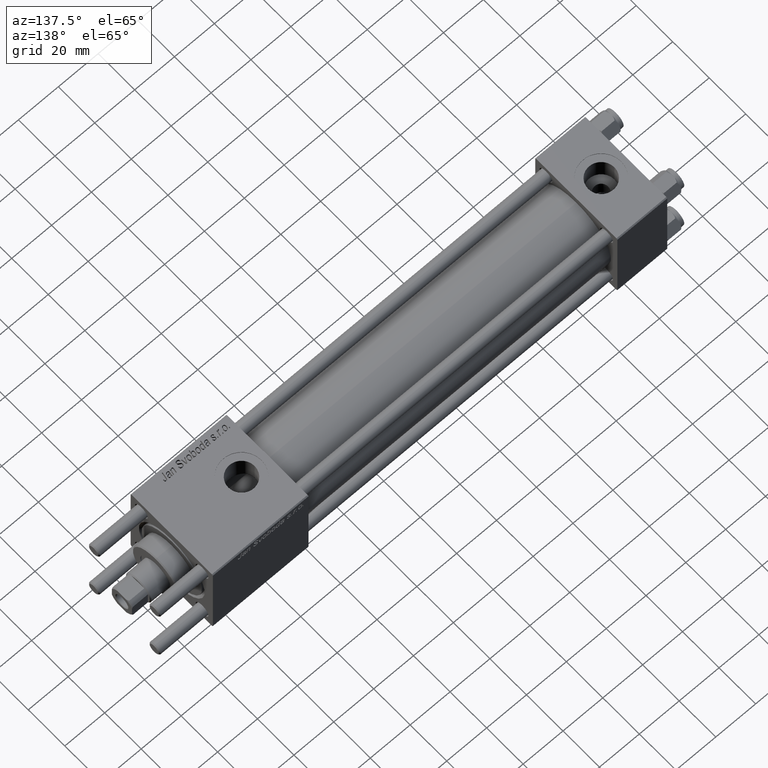
[diagram: clean part render]
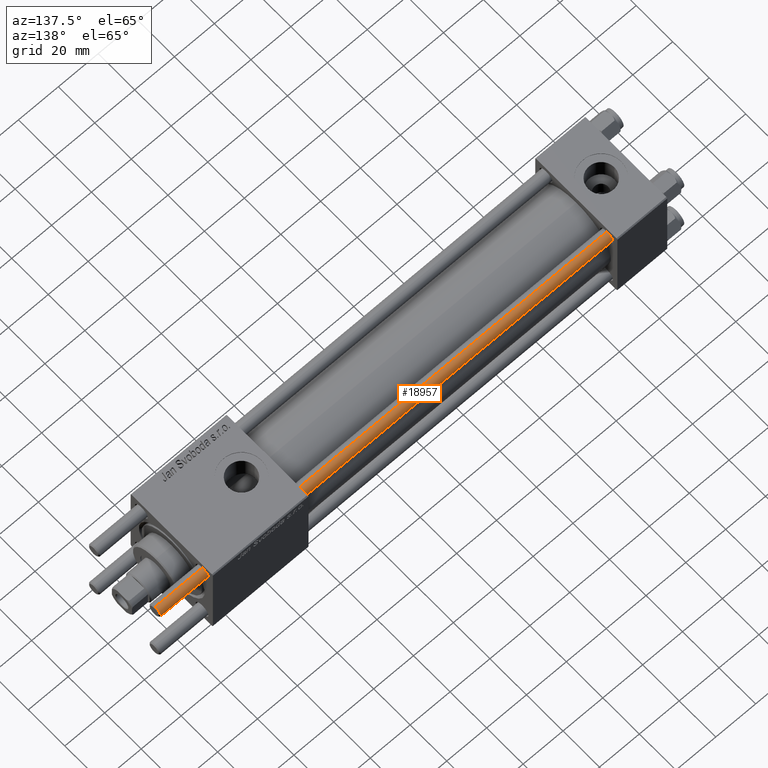
[diagram: same view with one face highlighted and labeled with its STEP entity id]
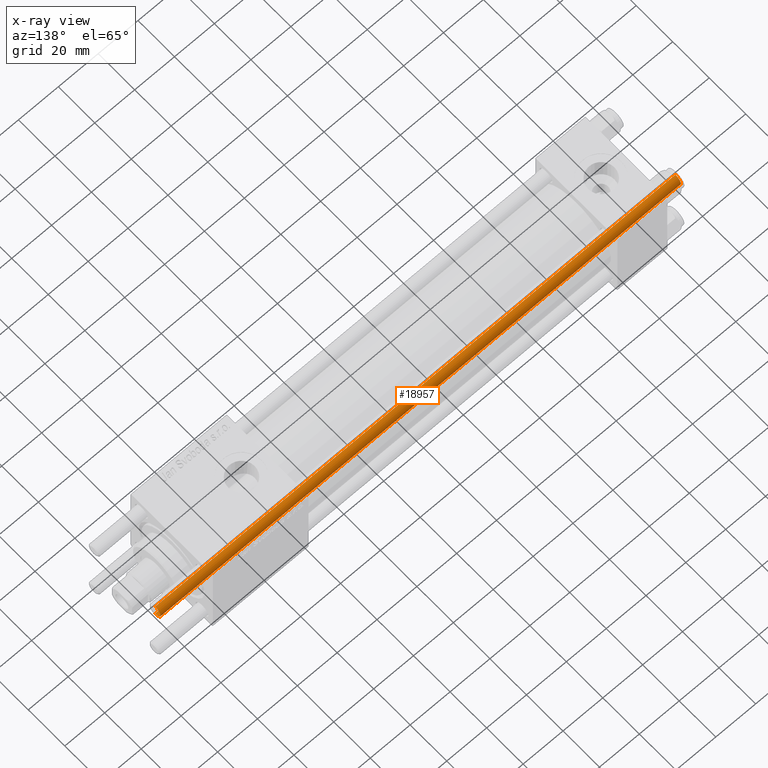
[diagram: x-ray of the same camera — body ghosted, the highlighted face saturated]
A machine part, auxiliary view. The second image highlights one B-rep face of the part: STEP entity #18957.
The next image is the same camera in x-ray: the body ghosted, the highlighted face saturated — about 0% of this face is hidden behind the body in this view.
In plain terms, the highlighted cylindrical surface (edge-blend (fillet) strip) has radius 3 mm, axis along (1, -0, -0).
Its self-contained STEP definition (entity closure, byte-faithful):
#84 = CARTESIAN_POINT ( 'NONE',  ( 0.000000000000000000, 0.000000000000000000, 261.5000000000000568 ) ) ;
#646 = DIRECTION ( 'NONE',  ( 1.000000000000000000, 0.000000000000000000, 0.000000000000000000 ) ) ;
#4919 = ORIENTED_EDGE ( 'NONE', *, *, #25396, .T. ) ;
#5668 = CIRCLE ( 'NONE', #54314, 3.000000000000000444 ) ;
#9003 = DIRECTION ( 'NONE',  ( 0.000000000000000000, 0.000000000000000000, -1.000000000000000000 ) ) ;
#9289 = CARTESIAN_POINT ( 'NONE',  ( -3.000000000000000444, 0.000000000000000000, 0.5000000000000004441 ) ) ;
#10610 = VERTEX_POINT ( 'NONE', #56538 ) ;
#11148 = AXIS2_PLACEMENT_3D ( 'NONE', #13972, #31505, #49036 ) ;
#13972 = CARTESIAN_POINT ( 'NONE',  ( 0.000000000000000000, 0.000000000000000000, 262.0000000000000000 ) ) ;
#14215 = ORIENTED_EDGE ( 'NONE', *, *, #20796, .F. ) ;
#14765 = CARTESIAN_POINT ( 'NONE',  ( 3.000000000000000444, 3.673940397442060361E-16, 262.0000000000000000 ) ) ;
#14856 = CIRCLE ( 'NONE', #56164, 3.000000000000000444 ) ;
#18957 = ADVANCED_FACE ( 'NONE', ( #35813 ), #53343, .T. ) ;
#20796 = EDGE_CURVE ( 'NONE', #10610, #34218, #32991, .T. ) ;
#21182 = EDGE_CURVE ( 'NONE', #23548, #34218, #14856, .T. ) ;
#21477 = CARTESIAN_POINT ( 'NONE',  ( 3.000000000000000444, 3.673940397442060361E-16, 0.5000000000000004441 ) ) ;
#23548 = VERTEX_POINT ( 'NONE', #21477 ) ;
#24237 = DIRECTION ( 'NONE',  ( 1.000000000000000000, 0.000000000000000000, 0.000000000000000000 ) ) ;
#25396 = EDGE_CURVE ( 'NONE', #10610, #54161, #5668, .T. ) ;
#26522 = ORIENTED_EDGE ( 'NONE', *, *, #31172, .T. ) ;
#31172 = EDGE_CURVE ( 'NONE', #54161, #23548, #50107, .T. ) ;
#31505 = DIRECTION ( 'NONE',  ( -0.000000000000000000, -0.000000000000000000, -1.000000000000000000 ) ) ;
#32245 = ORIENTED_EDGE ( 'NONE', *, *, #21182, .T. ) ;
#32991 = LINE ( 'NONE', #33273, #39644 ) ;
#33273 = CARTESIAN_POINT ( 'NONE',  ( -3.000000000000000444, 0.000000000000000000, 262.0000000000000000 ) ) ;
#34218 = VERTEX_POINT ( 'NONE', #9289 ) ;
#35813 = FACE_OUTER_BOUND ( 'NONE', #55724, .T. ) ;
#37950 = VECTOR ( 'NONE', #45225, 1000.000000000000000 ) ;
#38033 = CARTESIAN_POINT ( 'NONE',  ( 0.000000000000000000, 0.000000000000000000, 0.5000000000000004441 ) ) ;
#38449 = DIRECTION ( 'NONE',  ( -0.000000000000000000, -0.000000000000000000, -1.000000000000000000 ) ) ;
#39644 = VECTOR ( 'NONE', #38449, 1000.000000000000000 ) ;
#45225 = DIRECTION ( 'NONE',  ( -0.000000000000000000, -0.000000000000000000, -1.000000000000000000 ) ) ;
#46073 = DIRECTION ( 'NONE',  ( -0.000000000000000000, -0.000000000000000000, 1.000000000000000000 ) ) ;
#49036 = DIRECTION ( 'NONE',  ( -1.000000000000000000, 0.000000000000000000, 0.000000000000000000 ) ) ;
#50107 = LINE ( 'NONE', #14765, #37950 ) ;
#52176 = CARTESIAN_POINT ( 'NONE',  ( 3.000000000000000444, 3.673940397442060361E-16, 261.5000000000000568 ) ) ;
#53343 = CYLINDRICAL_SURFACE ( 'NONE', #11148, 3.000000000000000444 ) ;
#54161 = VERTEX_POINT ( 'NONE', #52176 ) ;
#54314 = AXIS2_PLACEMENT_3D ( 'NONE', #84, #9003, #646 ) ;
#55724 = EDGE_LOOP ( 'NONE', ( #4919, #26522, #32245, #14215 ) ) ;
#56164 = AXIS2_PLACEMENT_3D ( 'NONE', #38033, #46073, #24237 ) ;
#56538 = CARTESIAN_POINT ( 'NONE',  ( -3.000000000000000444, 0.000000000000000000, 261.5000000000000568 ) ) ;